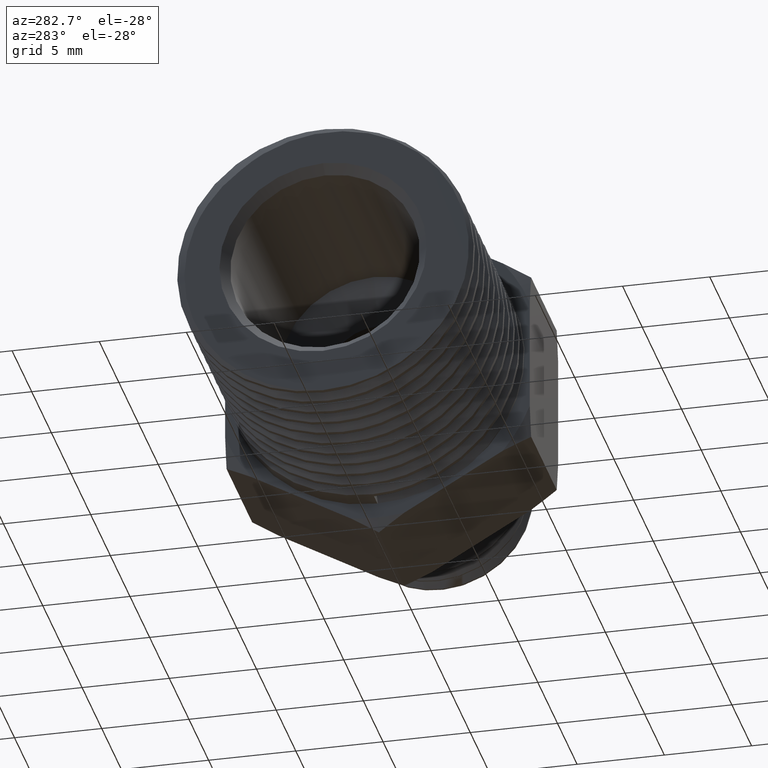
[diagram: clean part render]
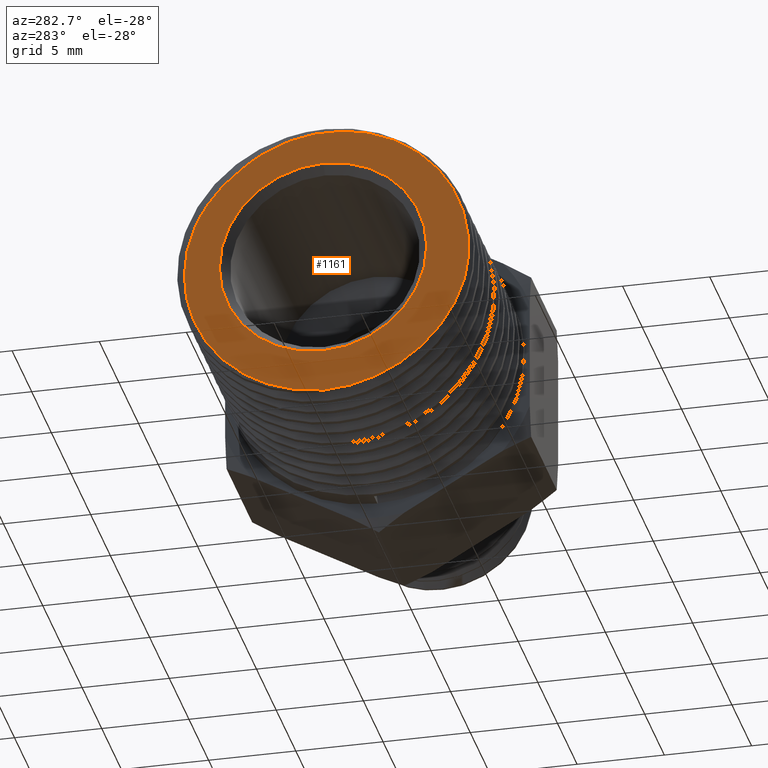
[diagram: same view with one face highlighted and labeled with its STEP entity id]
A machine part, auxiliary view. The second image highlights one B-rep face of the part: STEP entity #1161.
In plain terms, the highlighted planar face has unit normal (-1, 0, 0).
Its self-contained STEP definition (entity closure, byte-faithful):
#58 = CARTESIAN_POINT ( 'NONE',  ( -0.6870000000000000600, 0.0000000000000000000, 0.0000000000000000000 ) ) ;
#75 = DIRECTION ( 'NONE',  ( -1.000000000000000000, 0.0000000000000000000, 0.0000000000000000000 ) ) ;
#198 = CARTESIAN_POINT ( 'NONE',  ( -0.6869999999999999400, 0.1864467966809938100, 0.2375743925750335700 ) ) ;
#257 = CARTESIAN_POINT ( 'NONE',  ( -0.6869999999999999400, 0.2613966988063400900, -0.1856394964739640800 ) ) ;
#261 = CARTESIAN_POINT ( 'NONE',  ( -0.6870000000000000600, 0.0000000000000000000, -0.3315134314057342500 ) ) ;
#274 = CARTESIAN_POINT ( 'NONE',  ( -0.6869999999999996100, 0.2322013217628290700, -0.2255001450044486800 ) ) ;
#285 = CARTESIAN_POINT ( 'NONE',  ( -0.6870000000000000600, -0.07835145523618974900, 0.3034522195310470600 ) ) ;
#310 = CARTESIAN_POINT ( 'NONE',  ( -0.6869999999999996100, -0.3132431797724603600, 0.08982181686838541800 ) ) ;
#330 = CARTESIAN_POINT ( 'NONE',  ( -0.6870000000000000600, 0.0000000000000000000, 0.0000000000000000000 ) ) ;
#548 = EDGE_CURVE ( 'NONE', #3637, #3607, #5597, .T. ) ;
#635 = LINE ( 'NONE', #2483, #640 ) ;
#640 = VECTOR ( 'NONE', #5149, 39.37007874015748100 ) ;
#657 = CARTESIAN_POINT ( 'NONE',  ( -0.6869999999999999400, 0.2091701422411482200, -0.2484424787566626400 ) ) ;
#666 = CARTESIAN_POINT ( 'NONE',  ( -0.6869999999999999400, 0.1864467966809938100, 0.2375743925750335700 ) ) ;
#696 = DIRECTION ( 'NONE',  ( 1.000000000000000000, -0.0000000000000000000, -0.0000000000000000000 ) ) ;
#715 = CARTESIAN_POINT ( 'NONE',  ( -0.6870000000000000600, 0.1695362694219861300, -0.2776778492610680300 ) ) ;
#749 = CARTESIAN_POINT ( 'NONE',  ( -0.6870000000000000600, -0.1259747380320225500, 0.2890759233330113000 ) ) ;
#767 = CARTESIAN_POINT ( 'NONE',  ( -0.6870000000000001700, 0.1998149754672033700, 0.2279018183298315300 ) ) ;
#771 = CARTESIAN_POINT ( 'NONE',  ( -0.6870000000000003900, -0.3250317675077479300, 0.04159876049441513200 ) ) ;
#777 = AXIS2_PLACEMENT_3D ( 'NONE', #3446, #696, #3897 ) ;
#791 = DIRECTION ( 'NONE',  ( 0.0000000000000000000, 0.0000000000000000000, 1.000000000000000000 ) ) ;
#806 = B_SPLINE_CURVE_WITH_KNOTS ( 'NONE', 3,
 ( #198, #2925, #3926, #1183, #4372, #1645, #4794, #2112, #5237, #2571, #5642, #3028, #285, #3496, #749, #3948, #1200, #4388, #1668, #4814, #2131, #5260, #2590, #5657, #3045, #310, #3516, #771, #3969, #1221, #4408, #1689, #4835, #2152 ),
 .UNSPECIFIED., .F., .F.,
 ( 4, 2, 2, 2, 2, 2, 2, 2, 2, 2, 2, 2, 2, 2, 2, 2, 4 ),
 ( 3.319854670510407900E-017, 0.001266571484489466700, 0.002533142968978900500, 0.003799714453468333700, 0.005066285937957767200, 0.006332857422447199500, 0.007599428906936633500, 0.008866000391426067500, 0.009499286133670785400, 0.01013257187591550300, 0.01139914336040493600, 0.01266571484489437100, 0.01519885781387323800, 0.01646542929836266800, 0.01773200078285210000, 0.01899857226734153300, 0.02026514375183096100 ),
 .UNSPECIFIED. ) ;
#879 = CIRCLE ( 'NONE', #777, 0.2340000000000007900 ) ;
#889 = DIRECTION ( 'NONE',  ( 1.000000000000000000, -0.0000000000000000000, -0.0000000000000000000 ) ) ;
#1051 = FACE_BOUND ( 'NONE', #2012, .T. ) ;
#1093 = FACE_OUTER_BOUND ( 'NONE', #2345, .T. ) ;
#1100 = CARTESIAN_POINT ( 'NONE',  ( -0.6870000000000003900, 0.1555629526174485400, -0.2864320347931912400 ) ) ;
#1161 = ADVANCED_FACE ( 'NONE', ( #1051, #1093 ), #2796, .T. ) ;
#1172 = CARTESIAN_POINT ( 'NONE',  ( -0.6870000000000000600, 0.1267713585287195100, -0.3016085760474905800 ) ) ;
#1176 = CARTESIAN_POINT ( 'NONE',  ( -0.6870000000000003900, -0.3194189375792090300, -0.09052923459175660200 ) ) ;
#1183 = CARTESIAN_POINT ( 'NONE',  ( -0.6869999999999996100, 0.1316354314066516000, 0.2752405512208598300 ) ) ;
#1200 = CARTESIAN_POINT ( 'NONE',  ( -0.6870000000000000600, -0.1559779253421167700, 0.2751516760759539800 ) ) ;
#1221 = CARTESIAN_POINT ( 'NONE',  ( -0.6869999999999999400, -0.3293400443596845600, -0.007986630287927362300 ) ) ;
#1238 = CARTESIAN_POINT ( 'NONE',  ( -0.6869999999999999400, 0.2122665015103798700, 0.2171991986490074700 ) ) ;
#1251 = CARTESIAN_POINT ( 'NONE',  ( -0.6870000000000000600, 0.0000000000000000000, -0.3320000000000000200 ) ) ;
#1434 = CIRCLE ( 'NONE', #5696, 0.2340000000000007900 ) ;
#1554 = CARTESIAN_POINT ( 'NONE',  ( -0.6870000000000000600, 0.1118615093348842800, -0.3081005983631289200 ) ) ;
#1587 = ORIENTED_EDGE ( 'NONE', *, *, #2089, .T. ) ;
#1634 = CARTESIAN_POINT ( 'NONE',  ( -0.6870000000000000600, 0.08100066198017753800, -0.3188643278020373800 ) ) ;
#1645 = CARTESIAN_POINT ( 'NONE',  ( -0.6870000000000001700, 0.08566599468225404000, 0.2949042869487404900 ) ) ;
#1662 = CARTESIAN_POINT ( 'NONE',  ( -0.6870000000000000600, 0.2354169491628753100, 0.1938245524304200400 ) ) ;
#1668 = CARTESIAN_POINT ( 'NONE',  ( -0.6870000000000003900, -0.1777398381839900600, 0.2627757793016382600 ) ) ;
#1674 = CARTESIAN_POINT ( 'NONE',  ( -0.6870000000000001700, 0.06498135689598709400, -0.3231321970231034200 ) ) ;
#1685 = CARTESIAN_POINT ( 'NONE',  ( -0.6870000000000001700, 0.2460430496219275500, 0.1812064749652348400 ) ) ;
#1689 = CARTESIAN_POINT ( 'NONE',  ( -0.6870000000000003900, -0.3261059928492493500, -0.05786163205566316500 ) ) ;
#1703 = CARTESIAN_POINT ( 'NONE',  ( -0.6870000000000000600, 0.0000000000000000000, 0.2340000000000007900 ) ) ;
#1735 = VERTEX_POINT ( 'NONE', #5183 ) ;
#1751 = EDGE_CURVE ( 'NONE', #2871, #1735, #879, .T. ) ;
#2012 = EDGE_LOOP ( 'NONE', ( #4381, #3696 ) ) ;
#2025 = CIRCLE ( 'NONE', #5116, 0.3320000000000000200 ) ;
#2076 = CARTESIAN_POINT ( 'NONE',  ( -0.6870000000000000600, 0.0000000000000000000, -0.3315134314057342500 ) ) ;
#2080 = CARTESIAN_POINT ( 'NONE',  ( -0.6869999999999999400, 0.1864467966809938100, 0.2375743925750335700 ) ) ;
#2089 = EDGE_CURVE ( 'NONE', #3637, #4787, #635, .T. ) ;
#2108 = CARTESIAN_POINT ( 'NONE',  ( -0.6870000000000003900, 0.2649849436549446800, 0.1547218441427003500 ) ) ;
#2112 = CARTESIAN_POINT ( 'NONE',  ( -0.6870000000000001700, 0.03750378127937446800, 0.3067435791444130800 ) ) ;
#2131 = CARTESIAN_POINT ( 'NONE',  ( -0.6869999999999998300, -0.2116379240676014900, 0.2388251247756382500 ) ) ;
#2147 = CARTESIAN_POINT ( 'NONE',  ( -0.6869999999999996100, 0.2733781632296467000, 0.1407803361046552100 ) ) ;
#2152 = CARTESIAN_POINT ( 'NONE',  ( -0.6870000000000003900, -0.3194189375792090300, -0.09052923459175660200 ) ) ;
#2345 = EDGE_LOOP ( 'NONE', ( #2757, #1587, #4994, #2997 ) ) ;
#2483 = CARTESIAN_POINT ( 'NONE',  ( -0.6870000000000000600, 0.0000000000000000000, 0.0000000000000000000 ) ) ;
#2502 = CARTESIAN_POINT ( 'NONE',  ( -0.6869999999999998300, 0.2879737252788973100, 0.1114759540549543600 ) ) ;
#2559 = CARTESIAN_POINT ( 'NONE',  ( -0.6870000000000000600, 0.01648005158219155800, -0.3309508642100739700 ) ) ;
#2571 = CARTESIAN_POINT ( 'NONE',  ( -0.6870000000000006100, -0.01238347360877333300, 0.3106389429183346600 ) ) ;
#2590 = CARTESIAN_POINT ( 'NONE',  ( -0.6870000000000001700, -0.2473976611746910900, 0.2043597481429793000 ) ) ;
#2608 = CARTESIAN_POINT ( 'NONE',  ( -0.6869999999999999400, 0.2941518997996642200, 0.09608924805804357200 ) ) ;
#2757 = ORIENTED_EDGE ( 'NONE', *, *, #548, .F. ) ;
#2796 = PLANE ( 'NONE',  #5223 ) ;
#2871 = VERTEX_POINT ( 'NONE', #1703 ) ;
#2925 = CARTESIAN_POINT ( 'NONE',  ( -0.6869999999999999400, 0.1736797424573834900, 0.2484252130099919600 ) ) ;
#2943 = CARTESIAN_POINT ( 'NONE',  ( -0.6869999999999998300, 0.3038514507969183900, 0.06498900232701095000 ) ) ;
#2990 = CARTESIAN_POINT ( 'NONE',  ( -0.6870000000000005000, 0.03277090433250987700, -0.3291527724571474700 ) ) ;
#2997 = ORIENTED_EDGE ( 'NONE', *, *, #5395, .F. ) ;
#3028 = CARTESIAN_POINT ( 'NONE',  ( -0.6870000000000000600, -0.06181892210167021200, 0.3065811103928483000 ) ) ;
#3045 = CARTESIAN_POINT ( 'NONE',  ( -0.6869999999999996100, -0.2951999042566511600, 0.1365984756303622600 ) ) ;
#3277 = DIRECTION ( 'NONE',  ( 0.0000000000000000000, 0.0000000000000000000, 1.000000000000000000 ) ) ;
#3418 = CARTESIAN_POINT ( 'NONE',  ( -0.6869999999999998300, 0.3074482791480248100, 0.04914139530025873900 ) ) ;
#3446 = CARTESIAN_POINT ( 'NONE',  ( -0.6870000000000000600, 0.0000000000000000000, 0.0000000000000000000 ) ) ;
#3496 = CARTESIAN_POINT ( 'NONE',  ( -0.6870000000000001700, -0.1104285422239166500, 0.2946840663571122000 ) ) ;
#3509 = CARTESIAN_POINT ( 'NONE',  ( -0.6869999999999998300, 0.3121244424748551600, 0.01684845898314197400 ) ) ;
#3516 = CARTESIAN_POINT ( 'NONE',  ( -0.6870000000000003900, -0.3180092659799575400, 0.07386716657445621700 ) ) ;
#3534 = CARTESIAN_POINT ( 'NONE',  ( -0.6870000000000005000, 0.3131739023827416800, 0.0002758539631459775300 ) ) ;
#3540 = DIRECTION ( 'NONE',  ( -1.000000000000000000, 0.0000000000000000000, 0.0000000000000000000 ) ) ;
#3607 = VERTEX_POINT ( 'NONE', #2080 ) ;
#3613 = VERTEX_POINT ( 'NONE', #1176 ) ;
#3636 = CARTESIAN_POINT ( 'NONE',  ( -0.6870000000000000600, 0.0000000000000000000, 0.0000000000000000000 ) ) ;
#3637 = VERTEX_POINT ( 'NONE', #261 ) ;
#3696 = ORIENTED_EDGE ( 'NONE', *, *, #3730, .T. ) ;
#3730 = EDGE_CURVE ( 'NONE', #1735, #2871, #1434, .T. ) ;
#3862 = CARTESIAN_POINT ( 'NONE',  ( -0.6870000000000005000, 0.3127016706988465200, -0.03239353694593576100 ) ) ;
#3897 = DIRECTION ( 'NONE',  ( 0.0000000000000000000, 0.0000000000000000000, 1.000000000000000000 ) ) ;
#3926 = CARTESIAN_POINT ( 'NONE',  ( -0.6869999999999998300, 0.1601575488362395600, 0.2581186313766690200 ) ) ;
#3948 = CARTESIAN_POINT ( 'NONE',  ( -0.6870000000000000600, -0.1485682717662638300, 0.2788593366913668100 ) ) ;
#3966 = CARTESIAN_POINT ( 'NONE',  ( -0.6869999999999998300, 0.3112131662417063600, -0.04859005337528696200 ) ) ;
#3969 = CARTESIAN_POINT ( 'NONE',  ( -0.6870000000000001700, -0.3273093523843434400, 0.02523017256234417000 ) ) ;
#4085 = DIRECTION ( 'NONE',  ( 0.0000000000000000000, 0.0000000000000000000, 1.000000000000000000 ) ) ;
#4372 = CARTESIAN_POINT ( 'NONE',  ( -0.6870000000000001700, 0.1165201376801205500, 0.2827000725655740000 ) ) ;
#4381 = ORIENTED_EDGE ( 'NONE', *, *, #1751, .T. ) ;
#4388 = CARTESIAN_POINT ( 'NONE',  ( -0.6870000000000000600, -0.1705494217866682600, 0.2671202520824543800 ) ) ;
#4404 = CARTESIAN_POINT ( 'NONE',  ( -0.6870000000000000600, 0.3071175163251872500, -0.07267929056271464600 ) ) ;
#4408 = CARTESIAN_POINT ( 'NONE',  ( -0.6870000000000001700, -0.3290814595946012200, -0.02478407409438810100 ) ) ;
#4787 = VERTEX_POINT ( 'NONE', #1251 ) ;
#4794 = CARTESIAN_POINT ( 'NONE',  ( -0.6870000000000000600, 0.06986179908332247600, 0.2997098103802965400 ) ) ;
#4809 = CARTESIAN_POINT ( 'NONE',  ( -0.6870000000000001700, 0.3054404577559606300, -0.08067463002735871000 ) ) ;
#4814 = CARTESIAN_POINT ( 'NONE',  ( -0.6870000000000003900, -0.1986027939922581900, 0.2490057599147804700 ) ) ;
#4830 = CARTESIAN_POINT ( 'NONE',  ( -0.6870000000000005000, 0.3014483710403541000, -0.09659492025045492100 ) ) ;
#4835 = CARTESIAN_POINT ( 'NONE',  ( -0.6870000000000007200, -0.3233912994936500300, -0.07426488984419339600 ) ) ;
#4994 = ORIENTED_EDGE ( 'NONE', *, *, #5410, .T. ) ;
#5116 = AXIS2_PLACEMENT_3D ( 'NONE', #330, #3540, #791 ) ;
#5149 = DIRECTION ( 'NONE',  ( 0.0000000000000000000, 0.0000000000000000000, -1.000000000000000000 ) ) ;
#5170 = CARTESIAN_POINT ( 'NONE',  ( -0.6870000000000003900, 0.2991251443462769600, -0.1045354514663109800 ) ) ;
#5183 = CARTESIAN_POINT ( 'NONE',  ( -0.6870000000000000600, 2.865673510004816200E-017, -0.2340000000000007900 ) ) ;
#5223 = AXIS2_PLACEMENT_3D ( 'NONE', #58, #75, #3277 ) ;
#5233 = CARTESIAN_POINT ( 'NONE',  ( -0.6870000000000005000, 0.2913134329296810900, -0.1278386683753301200 ) ) ;
#5237 = CARTESIAN_POINT ( 'NONE',  ( -0.6870000000000005000, 0.02079760341291487400, 0.3089688756852896300 ) ) ;
#5256 = CARTESIAN_POINT ( 'NONE',  ( -0.6870000000000001700, 0.2849604217727835200, -0.1428201070677938800 ) ) ;
#5260 = CARTESIAN_POINT ( 'NONE',  ( -0.6869999999999999400, -0.2360068731810885900, 0.2165149641461247000 ) ) ;
#5276 = CARTESIAN_POINT ( 'NONE',  ( -0.6870000000000005000, 0.2700167150440904700, -0.1717004127190742700 ) ) ;
#5395 = EDGE_CURVE ( 'NONE', #3607, #3613, #806, .T. ) ;
#5410 = EDGE_CURVE ( 'NONE', #4787, #3613, #2025, .T. ) ;
#5597 = B_SPLINE_CURVE_WITH_KNOTS ( 'NONE', 3,
 ( #2076, #2559, #2990, #1674, #1634, #1554, #1172, #1100, #715, #657, #274, #257, #5276, #5256, #5233, #5170, #4830, #4809, #4404, #3966, #3862, #3534, #3509, #3418, #2943, #2608, #2502, #2147, #2108, #1685, #1662, #1238, #767, #666 ),
 .UNSPECIFIED., .F., .F.,
 ( 4, 2, 2, 2, 2, 2, 2, 2, 2, 2, 2, 2, 2, 2, 2, 2, 4 ),
 ( 0.0000000000000000000, 0.001247798978636307500, 0.002495597957272614900, 0.003743396935908922800, 0.004991195914545229800, 0.007486793871817849100, 0.008734592850454161300, 0.009982391829090471800, 0.01060629131840862400, 0.01123019080772677900, 0.01247798978636308600, 0.01372578876499939600, 0.01497358774363570200, 0.01622138672227201000, 0.01746918570090831900, 0.01871698467954462400, 0.01996478365818093300 ),
 .UNSPECIFIED. ) ;
#5642 = CARTESIAN_POINT ( 'NONE',  ( -0.6870000000000003900, -0.02890611780836821800, 0.3101484871539043600 ) ) ;
#5657 = CARTESIAN_POINT ( 'NONE',  ( -0.6869999999999999400, -0.2787379396835962800, 0.1652326219527170100 ) ) ;
#5696 = AXIS2_PLACEMENT_3D ( 'NONE', #3636, #889, #4085 ) ;